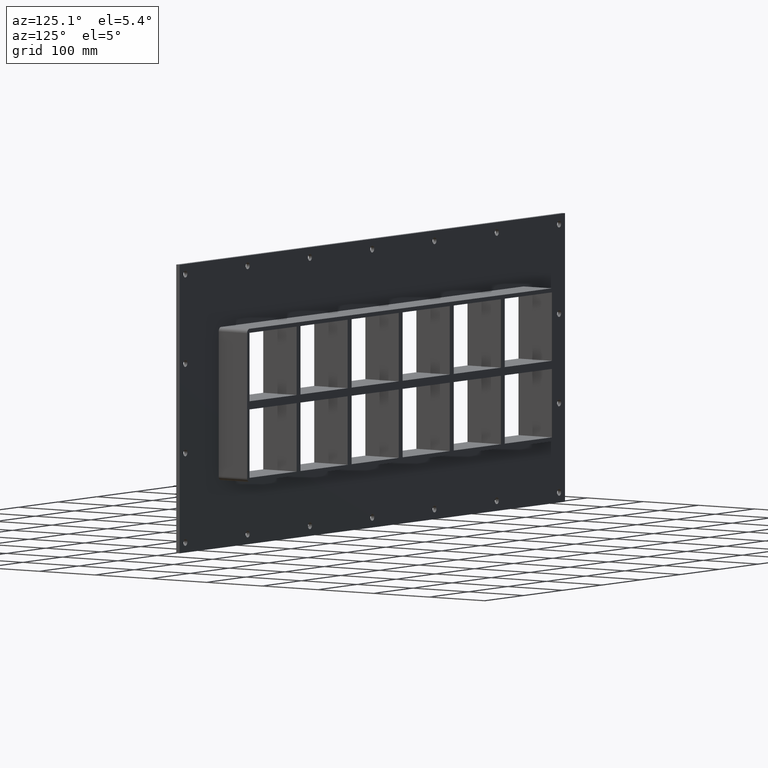
[diagram: clean part render]
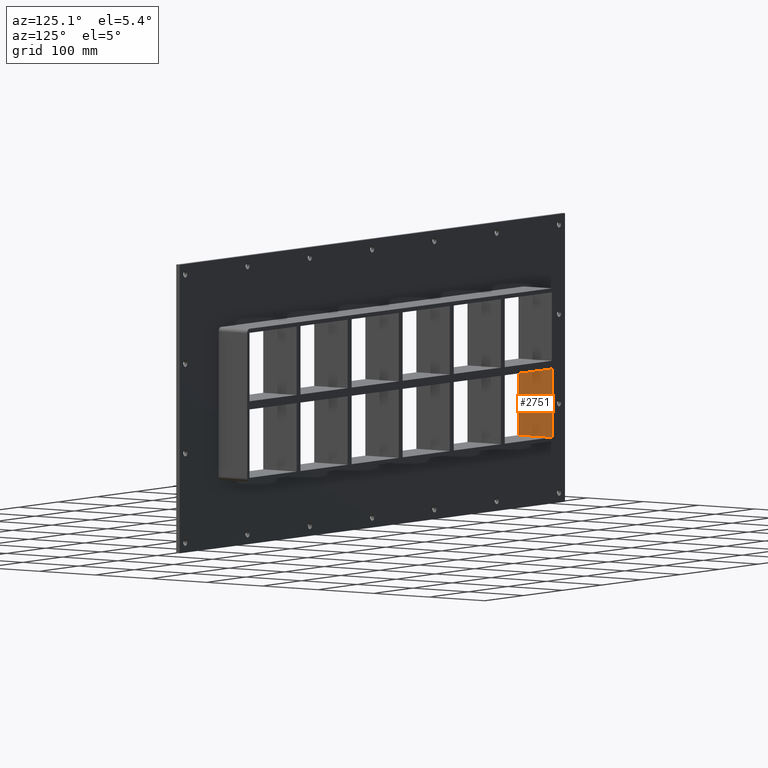
[diagram: same view with one face highlighted and labeled with its STEP entity id]
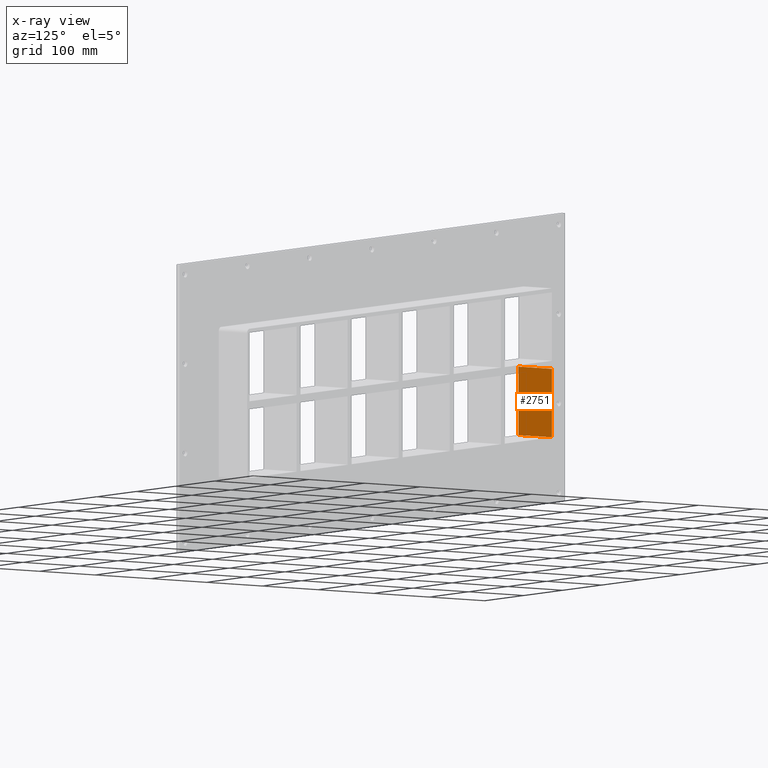
[diagram: x-ray of the same camera — body ghosted, the highlighted face saturated]
A machine part, auxiliary view. The second image highlights one B-rep face of the part: STEP entity #2751.
The next image is the same camera in x-ray: the body ghosted, the highlighted face saturated — about 0% of this face is hidden behind the body in this view.
In plain terms, the highlighted planar face has unit normal (-1, 0, 0).
Its self-contained STEP definition (entity closure, byte-faithful):
#1618=CARTESIAN_POINT('',(-386.49999999999977,-3.0,-6.000000000009607));
#1619=VERTEX_POINT('',#1618);
#1634=CARTESIAN_POINT('',(-386.50000000000006,-3.0,-107.00000000000003));
#1635=VERTEX_POINT('',#1634);
#1642=CARTESIAN_POINT('',(-386.50000000000006,-3.0,-107.00000000000003));
#1643=DIRECTION('',(0.0,0.0,1.0));
#1644=VECTOR('',#1643,100.99999999999042);
#1645=LINE('',#1642,#1644);
#1646=EDGE_CURVE('',#1635,#1619,#1645,.T.);
#1960=CARTESIAN_POINT('',(-386.49999999999977,57.0,-6.000000000009607));
#1961=VERTEX_POINT('',#1960);
#1962=CARTESIAN_POINT('',(-386.50000000000006,57.0,-107.00000000000003));
#1963=VERTEX_POINT('',#1962);
#1964=CARTESIAN_POINT('',(-386.50000000000006,57.0,-6.000000000009607));
#1965=DIRECTION('',(0.0,0.0,-1.0));
#1966=VECTOR('',#1965,100.99999999999042);
#1967=LINE('',#1964,#1966);
#1968=EDGE_CURVE('',#1961,#1963,#1967,.T.);
#2172=CARTESIAN_POINT('',(-386.50000000000006,57.000000000000007,-6.000000000009607));
#2173=DIRECTION('',(0.0,-1.0,0.0));
#2174=VECTOR('',#2173,60.000000000000007);
#2175=LINE('',#2172,#2174);
#2176=EDGE_CURVE('',#1961,#1619,#2175,.T.);
#2322=CARTESIAN_POINT('',(-386.50000000000006,-3.0,-107.00000000000003));
#2323=DIRECTION('',(0.0,1.0,0.0));
#2324=VECTOR('',#2323,60.0);
#2325=LINE('',#2322,#2324);
#2326=EDGE_CURVE('',#1635,#1963,#2325,.T.);
#2740=CARTESIAN_POINT('',(-386.50000000000006,0.0,-107.00000000000003));
#2741=DIRECTION('',(-1.0,0.0,0.0));
#2742=DIRECTION('',(0.0,0.0,1.0));
#2743=AXIS2_PLACEMENT_3D('',#2740,#2741,#2742);
#2744=PLANE('',#2743);
#2745=ORIENTED_EDGE('',*,*,#2176,.T.);
#2746=ORIENTED_EDGE('',*,*,#1646,.F.);
#2747=ORIENTED_EDGE('',*,*,#2326,.T.);
#2748=ORIENTED_EDGE('',*,*,#1968,.F.);
#2749=EDGE_LOOP('',(#2745,#2746,#2747,#2748));
#2750=FACE_OUTER_BOUND('',#2749,.T.);
#2751=ADVANCED_FACE('',(#2750),#2744,.F.);